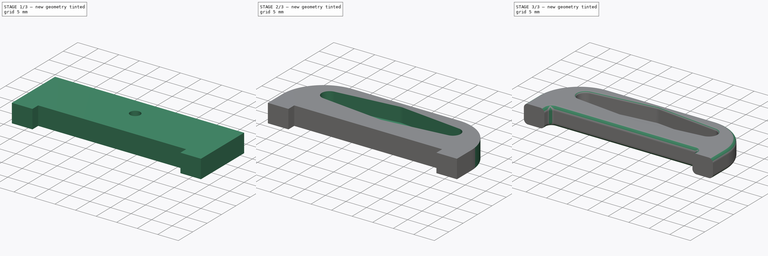
[diagram: build sequence overview — one tinted view per stage of 3, left to right]
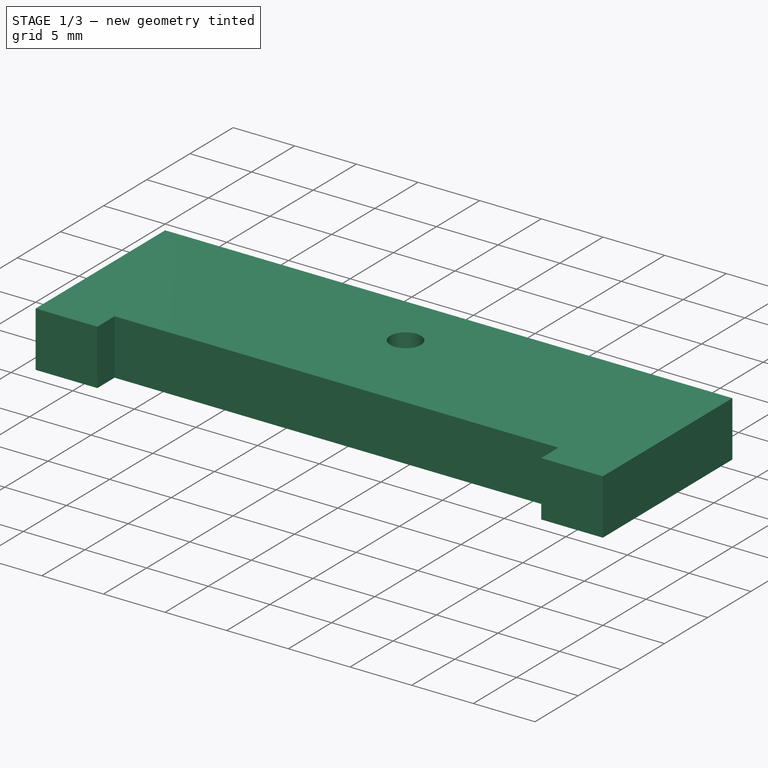
[diagram: stage 1 of 3 — iso view after this stage's code; geometry added in this stage tinted green]
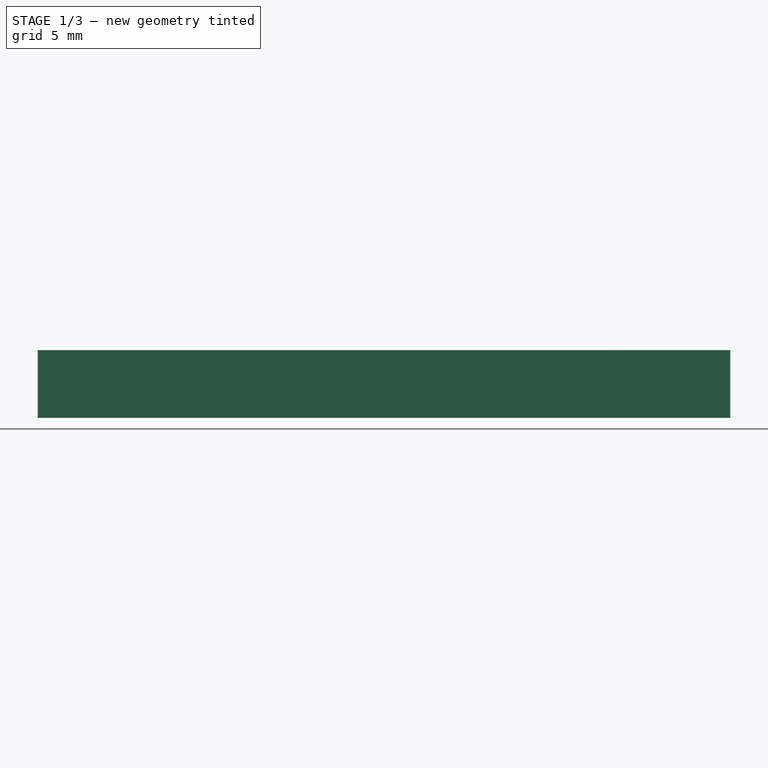
[diagram: stage 1 of 3 — front view after this stage's code; geometry added in this stage tinted green]
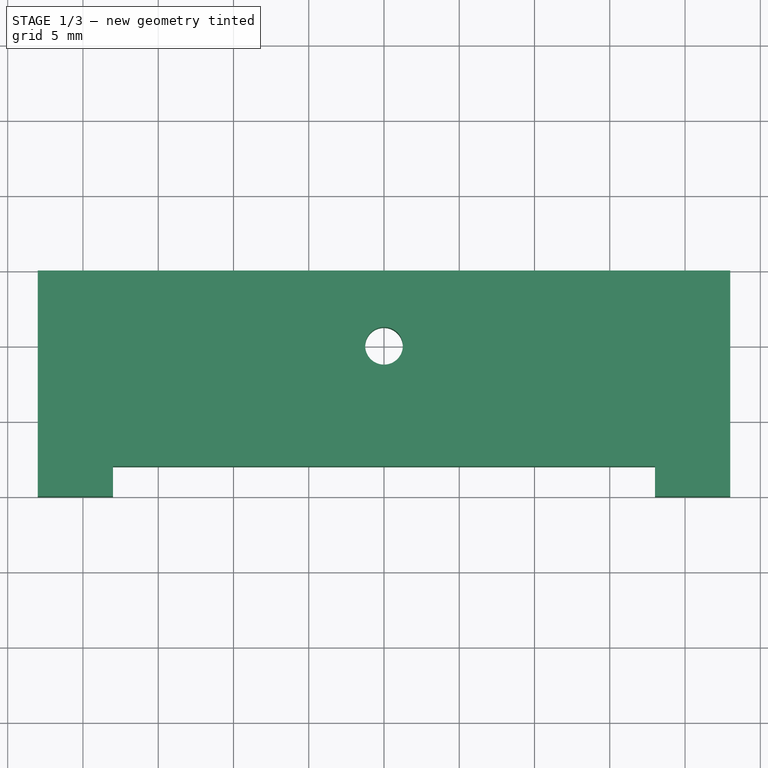
[diagram: stage 1 of 3 — top view after this stage's code; geometry added in this stage tinted green]
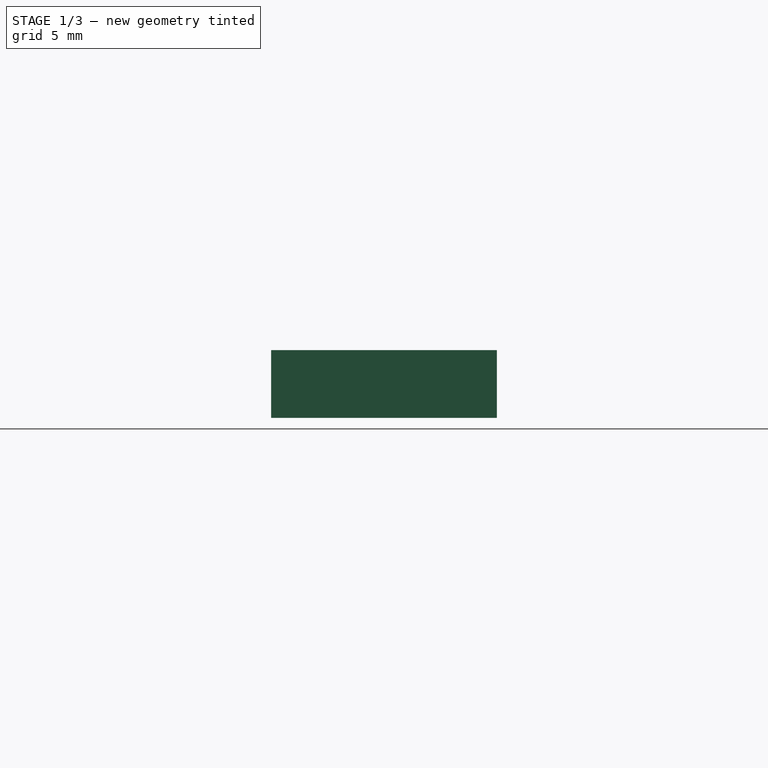
[diagram: stage 1 of 3 — right view after this stage's code; geometry added in this stage tinted green]
FCSTD DOCUMENT  (FreeCAD 0.18R14975 (Git))
Label: Lever
License: All rights reserved
LicenseURL: http://en.wikipedia.org/wiki/All_rights_reserved
objects: Sketcher::SketchObject×3, PartDesign::Fillet×3, PartDesign::Pocket×2, PartDesign::Pad×1
note: 12 computed .brp shape members not serialized (recipe doc carries the construction recipe); baked Part::Feature solids carry a one-line shape summary decoded from their .brp

FEATURE [Sketcher::SketchObject] Sketch
  MapMode = 5
  sketch-geometry (8):
    g0: LineSegment StartX=23 StartY=15 StartZ=0 EndX=23 EndY=0 EndZ=0
    g1: LineSegment StartX=-23 StartY=0 StartZ=0 EndX=-23 EndY=15 EndZ=0
    g2: LineSegment StartX=-23 StartY=0 StartZ=0 EndX=-18 EndY=0 EndZ=0
    g3: LineSegment StartX=-18 StartY=0 StartZ=0 EndX=-18 EndY=2 EndZ=0
    g4: LineSegment StartX=-18 StartY=2 StartZ=0 EndX=18 EndY=2 EndZ=0
    g5: LineSegment StartX=18 StartY=2 StartZ=0 EndX=18 EndY=0 EndZ=0
    g6: LineSegment StartX=18 StartY=0 StartZ=0 EndX=23 EndY=0 EndZ=0
    g7: LineSegment StartX=-23 StartY=15 StartZ=0 EndX=23 EndY=15 EndZ=0
  constraints (24):
    c: Vertical(g0)
    c: Vertical(g1)
    c: Equal(g0,g1)
    c: DistanceX(g-1,g0) = 23
    c: DistanceX(g1,g-1) = 23
    c: PointOnObject(g0,g-1)
    c: PointOnObject(g1,g-1)
    c: Coincident(g1,g2)
    c: Horizontal(g2)
    c: Coincident(g2,g3)
    c: Vertical(g3)
    c: Coincident(g3,g4)
    c: Horizontal(g4)
    c: Coincident(g4,g5)
    c: PointOnObject(g5,g-1)
    c: Vertical(g5)
    c: Coincident(g5,g6)
    c: Coincident(g6,g0)
    c: DistanceX(g2,g-1) = 18
    c: DistanceX(g-1,g5) = 18
    c: DistanceY(g3) = 2
    c: Coincident(g7,g0)
    c: DistanceY(g0,g0) = 15
    c: Coincident(g1,g7)
FEATURE [PartDesign::Pad] Pad
  Length = 4.5
  Length2 = 100
  Profile = -> Sketch
  Type = 0
FEATURE [Sketcher::SketchObject] Sketch002
  MapMode = 5
  Placement = pos=(0,0,4.5) rot=(0,0,1;0rad)
  Support = -> [Pad]
  sketch-geometry (1):
    g0: Circle CenterX=0 CenterY=10 CenterZ=0 NormalX=0 NormalY=0 NormalZ=1 AngleXU=0 Radius=1.25
  constraints (3):
    c: PointOnObject(g0,g-2)
    c: Radius(g0) = 1.25
    c: DistanceY(g-1,g0) = 10
FEATURE [PartDesign::Pocket] Pocket
  Length = 5
  Length2 = 100
  Profile = -> Sketch002
  Type = 0
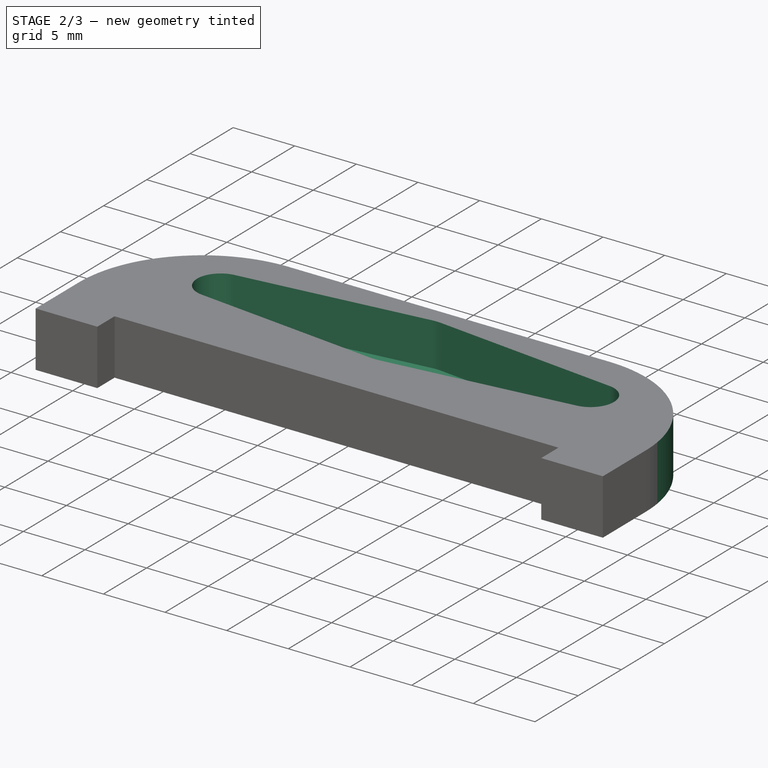
[diagram: stage 2 of 3 — iso view after this stage's code; geometry added in this stage tinted green]
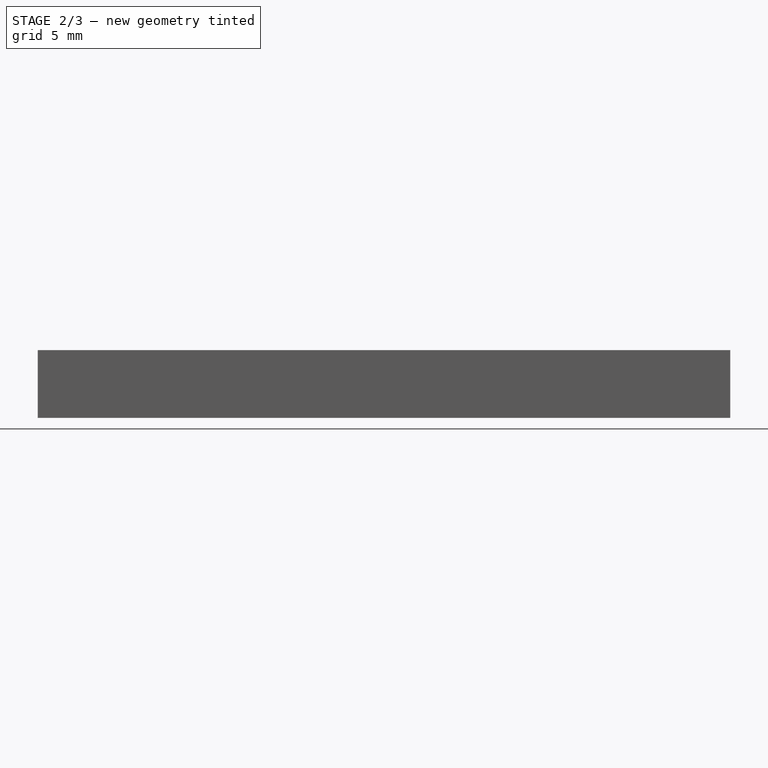
[diagram: stage 2 of 3 — front view after this stage's code; geometry added in this stage tinted green]
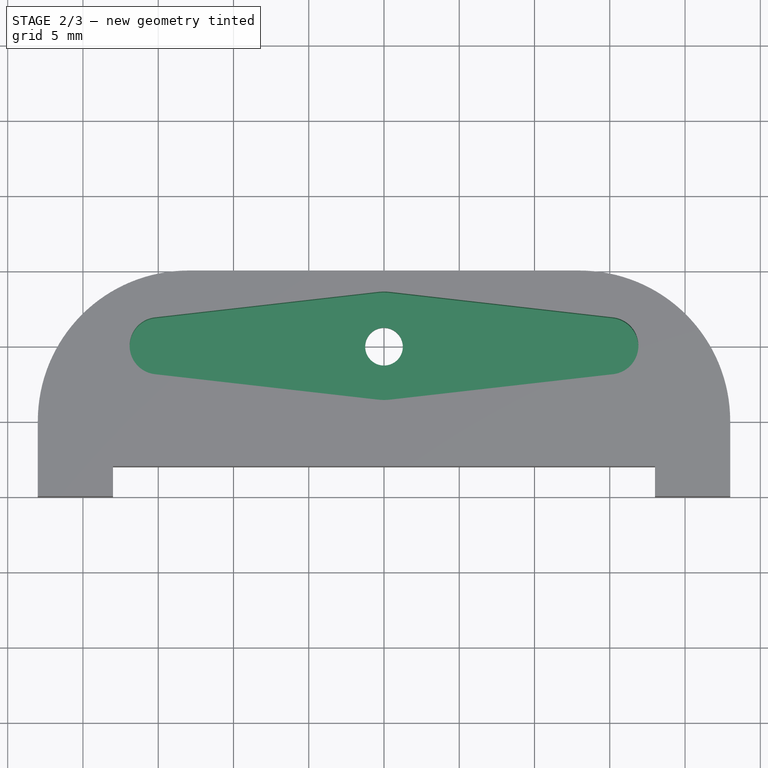
[diagram: stage 2 of 3 — top view after this stage's code; geometry added in this stage tinted green]
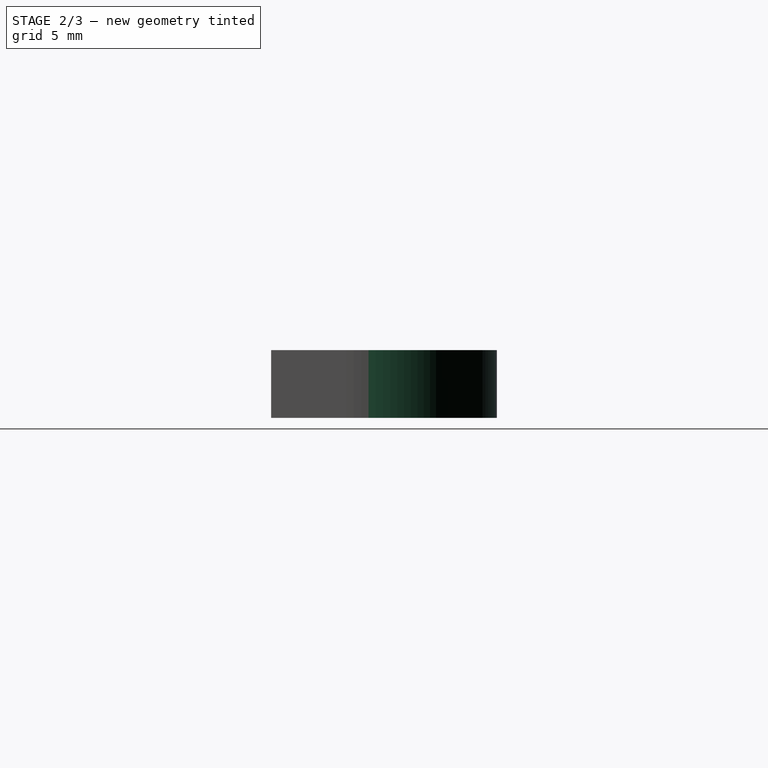
[diagram: stage 2 of 3 — right view after this stage's code; geometry added in this stage tinted green]
FEATURE [Sketcher::SketchObject] Sketch003
  MapMode = 5
  Placement = pos=(0,0,4.5) rot=(0,0,1;0rad)
  Support = -> [Pocket]
  sketch-geometry (8):
    g0: LineSegment StartX=-15.2153 StartY=11.8878 StartZ=0 EndX=-0.408 EndY=13.5768 EndZ=0
    g1: LineSegment StartX=-15.2153 StartY=8.11224 StartZ=0 EndX=-0.408 EndY=6.42319 EndZ=0
    g2: LineSegment StartX=0.408 StartY=6.42319 StartZ=0 EndX=15.2153 EndY=8.11224 EndZ=0
    g3: LineSegment StartX=15.2153 StartY=11.8878 StartZ=0 EndX=0.408 EndY=13.5768 EndZ=0
    g4: ArcOfCircle CenterX=15 CenterY=10 CenterZ=0 NormalX=0 NormalY=0 NormalZ=1 AngleXU=0 Radius=1.9 StartAngle=4.82597 EndAngle=7.7404
    g5: ArcOfCircle CenterX=-15 CenterY=10 CenterZ=0 NormalX=0 NormalY=0 NormalZ=1 AngleXU=0 Radius=1.9 StartAngle=1.68437 EndAngle=4.59881
    g6: ArcOfCircle CenterX=0 CenterY=10 CenterZ=0 NormalX=0 NormalY=0 NormalZ=1 AngleXU=0 Radius=3.6 StartAngle=4.59881 EndAngle=4.82597
    g7: ArcOfCircle CenterX=0 CenterY=10 CenterZ=0 NormalX=0 NormalY=0 NormalZ=1 AngleXU=0 Radius=3.6 StartAngle=1.45722 EndAngle=1.68437
  constraints (19):
    c: DistanceX(g-1,g4) = 15
    c: DistanceX(g5,g-1) = 15
    c: DistanceY(g-1,g4) = 10
    c: DistanceY(g-1,g5) = 10
    c: PointOnObject(g6,g-2)
    c: Radius(g6) = 3.6
    c: DistanceY(g-1,g6) = 10
    c: Radius(g4) = 1.9
    c: Radius(g5) = 1.9
    c: Coincident(g6,g1)
    c: Coincident(g7,g0)
    c: Equal(g6,g7)
    c: Coincident(g6,g2)
    c: Coincident(g7,g3)
    c: Coincident(g6,g7)
    c: Coincident(g5,g0)
    c: Coincident(g5,g1)
    c: Coincident(g4,g2)
    c: Coincident(g4,g3)
FEATURE [PartDesign::Pocket] Pocket001
  Length = 3.5
  Length2 = 100
  Profile = -> Sketch003
  Type = 0
FEATURE [PartDesign::Fillet] Fillet
  Base = -> Pocket001 [Edge2,Edge8]
  Radius = 10
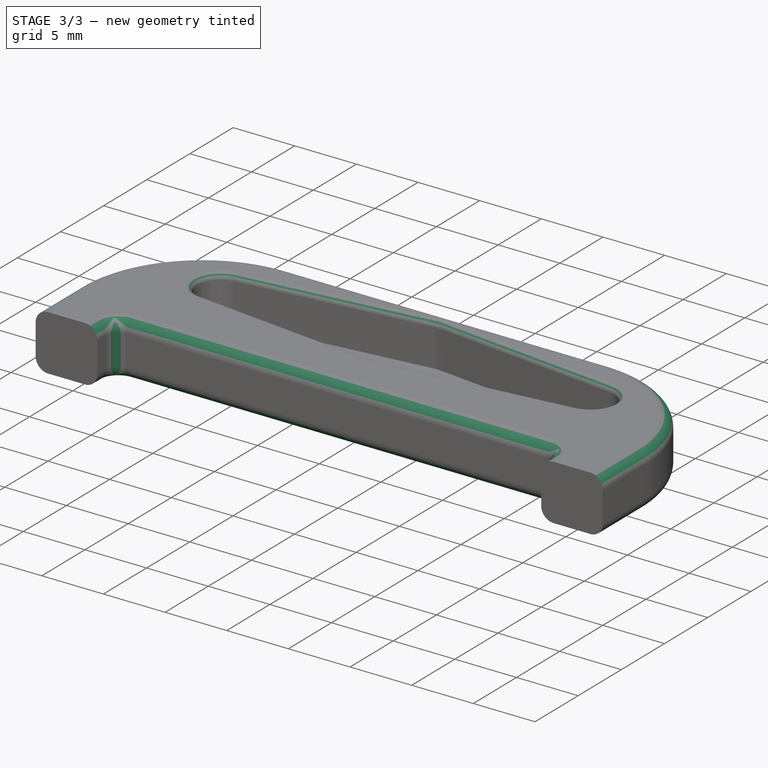
[diagram: stage 3 of 3 — iso view after this stage's code; geometry added in this stage tinted green]
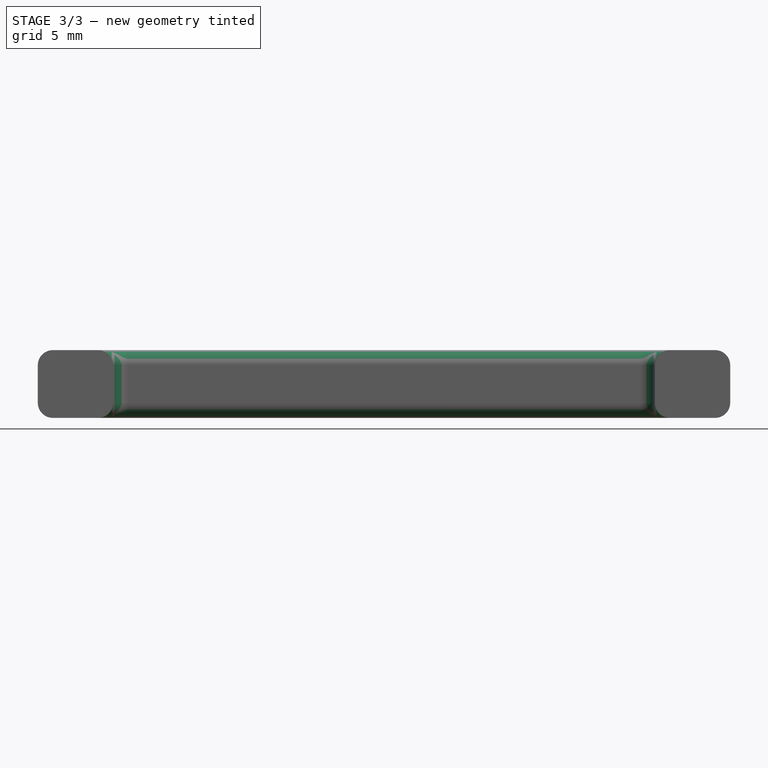
[diagram: stage 3 of 3 — front view after this stage's code; geometry added in this stage tinted green]
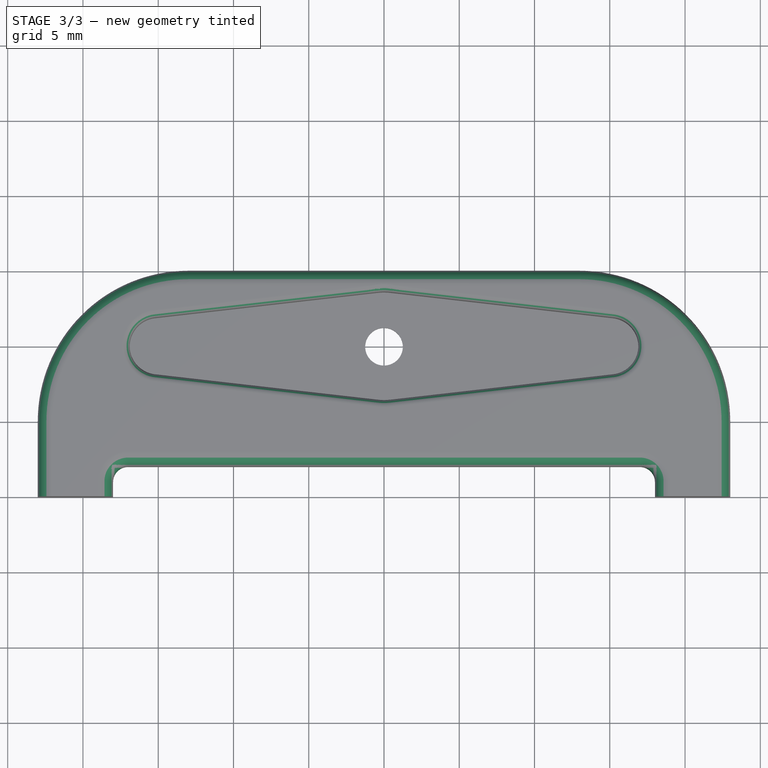
[diagram: stage 3 of 3 — top view after this stage's code; geometry added in this stage tinted green]
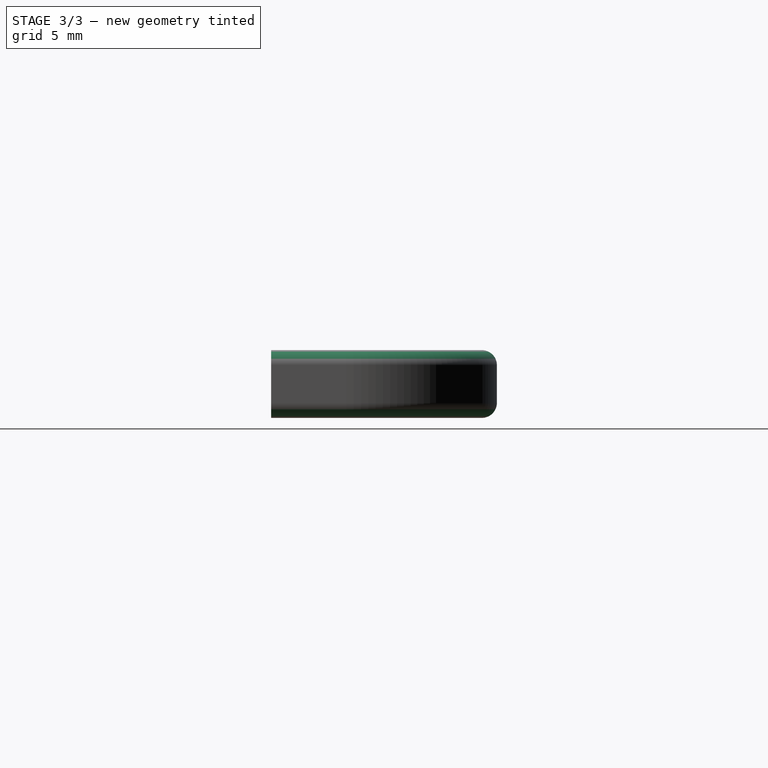
[diagram: stage 3 of 3 — right view after this stage's code; geometry added in this stage tinted green]
FEATURE [PartDesign::Fillet] Fillet001
  Base = -> Fillet [Edge8,Edge20,Edge22,Edge10,Edge24,Edge12,Edge35,Edge37,Edge23,Edge21,Edge16,Edge19,Edge4,Edge11,Edge9,Edge7,Edge5,Edge1]
  Radius = 1
FEATURE [PartDesign::Fillet] Fillet002
  Base = -> Fillet001 [Edge52,Edge51,Edge50,Edge49,Edge48,Edge47,Edge46,Edge45]
  Radius = 0.5
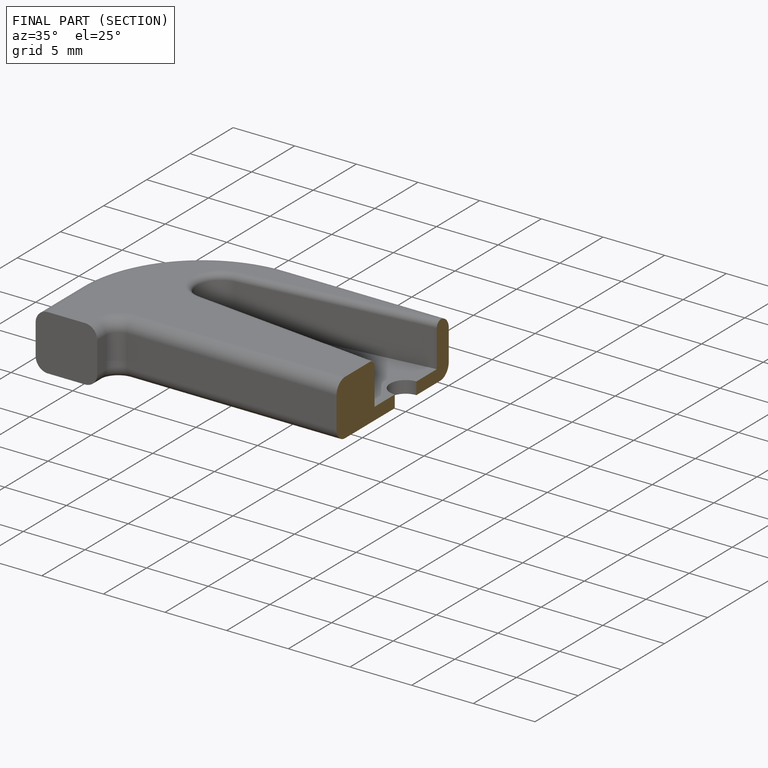
[diagram: finished part — half-section view (interior)]
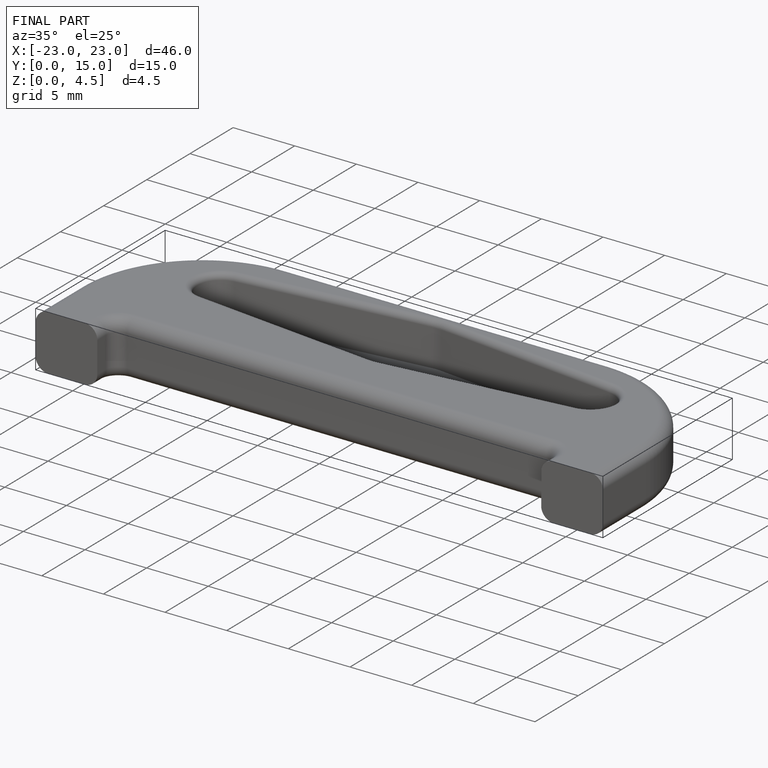
[diagram: finished part — iso view with bounding-box wireframe]
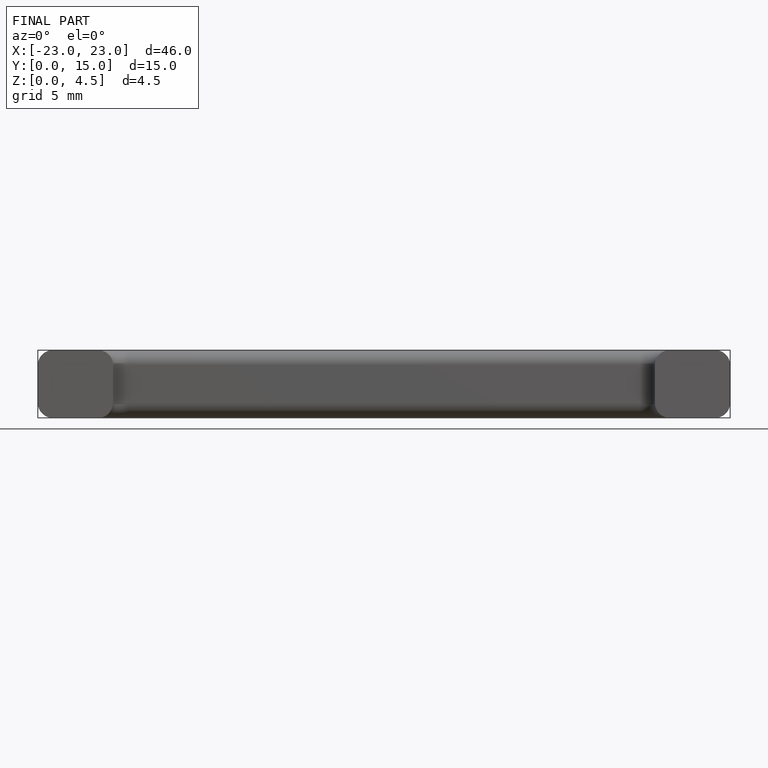
[diagram: finished part — front view with bounding-box wireframe]
